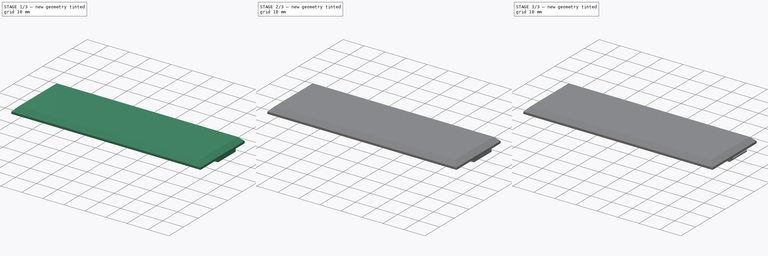
[diagram: build sequence overview — one tinted view per stage of 3, left to right]
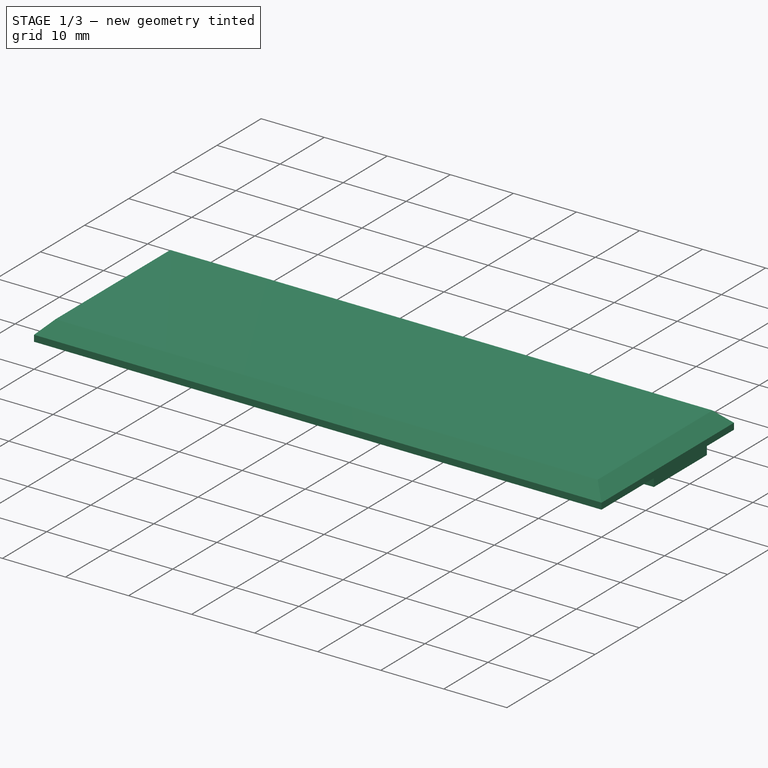
[diagram: stage 1 of 3 — iso view after this stage's code; geometry added in this stage tinted green]
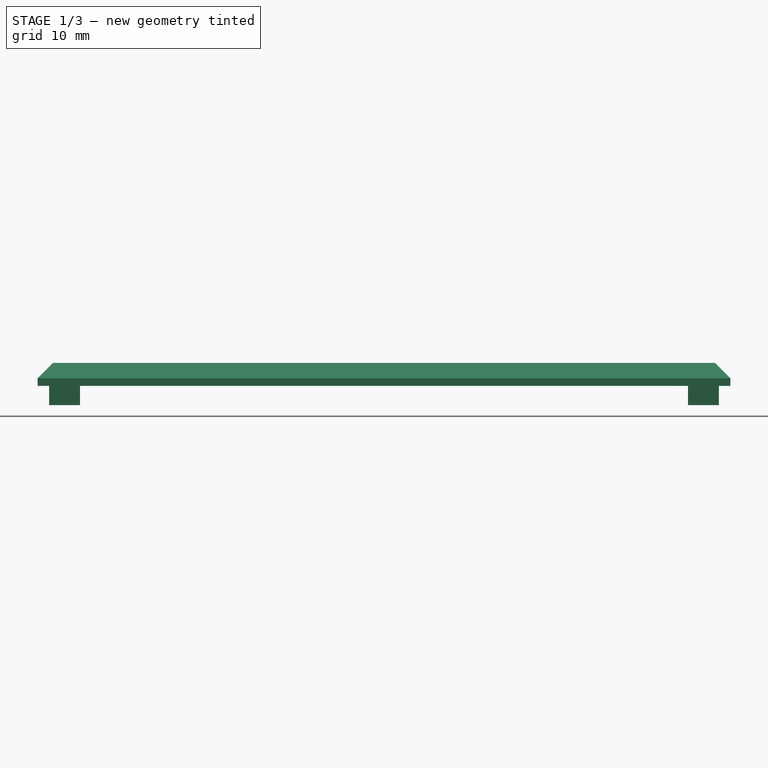
[diagram: stage 1 of 3 — front view after this stage's code; geometry added in this stage tinted green]
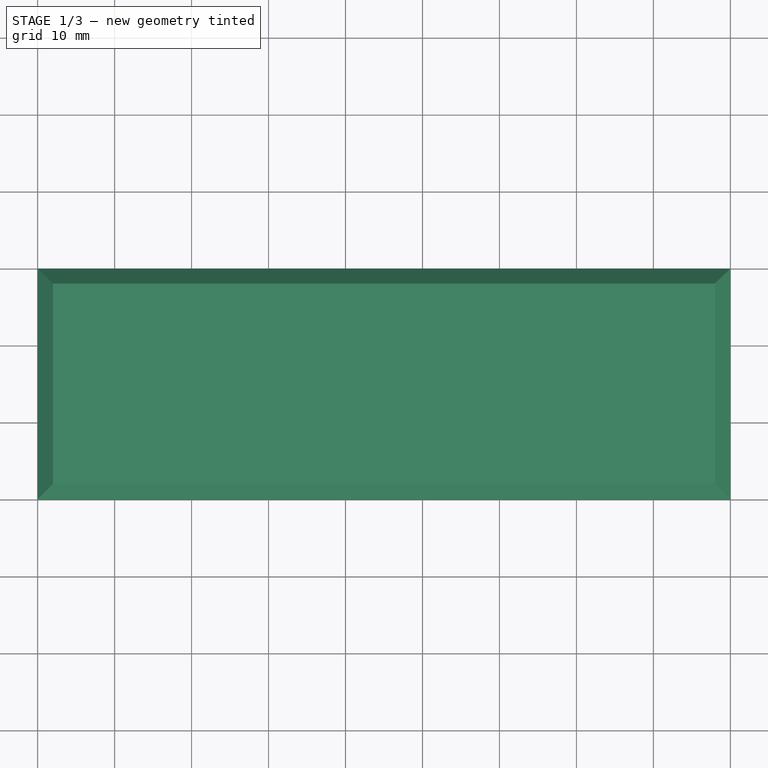
[diagram: stage 1 of 3 — top view after this stage's code; geometry added in this stage tinted green]
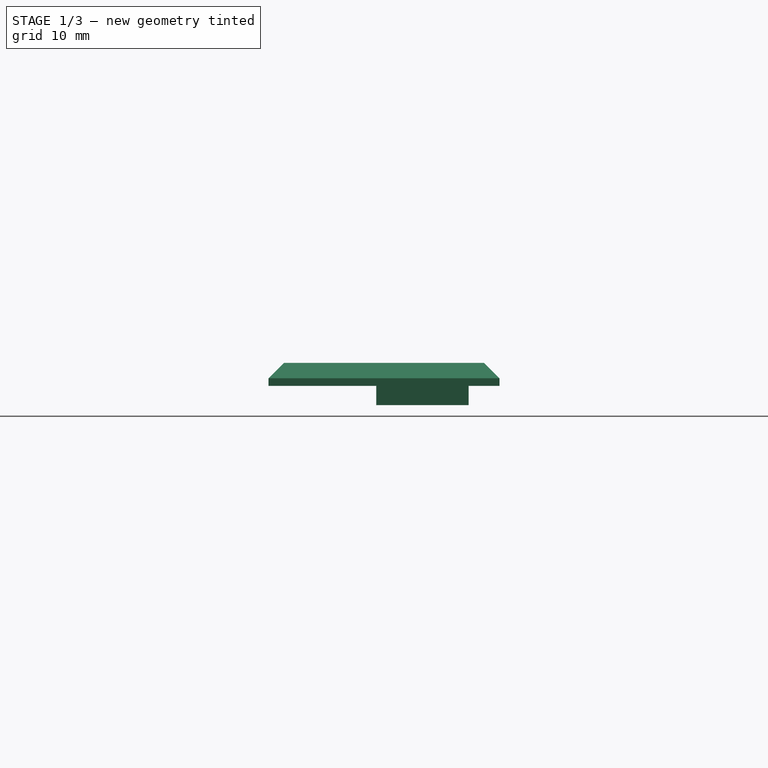
[diagram: stage 1 of 3 — right view after this stage's code; geometry added in this stage tinted green]
FCSTD DOCUMENT  (FreeCAD 0.18R16131 (Git))
Label: Simon splitter 6x lid
License: All rights reserved
LicenseURL: http://en.wikipedia.org/wiki/All_rights_reserved
objects: Sketcher::SketchObject×4, PartDesign::Chamfer×4, PartDesign::Pad×2, PartDesign::Pocket×2, PartDesign::Body×1
note: 17 computed .brp shape members not serialized (recipe doc carries the construction recipe); baked Part::Feature solids carry a one-line shape summary decoded from their .brp

FEATURE [Sketcher::SketchObject] Sketch
  MapMode = 5
  Support = -> [XY_Plane]
  sketch-geometry (4):
    g0: LineSegment StartX=0 StartY=1e-16 StartZ=0 EndX=90 EndY=1e-16 EndZ=0
    g1: LineSegment StartX=90 StartY=1e-16 StartZ=0 EndX=90 EndY=30 EndZ=0
    g2: LineSegment StartX=90 StartY=30 StartZ=0 EndX=0 EndY=30 EndZ=0
    g3: LineSegment StartX=0 StartY=30 StartZ=0 EndX=0 EndY=0 EndZ=0
  constraints (11):
    c: Coincident(g0,g1)
    c: Coincident(g1,g2)
    c: Coincident(g2,g3)
    c: Coincident(g3,g0)
    c: Horizontal(g0)
    c: Horizontal(g2)
    c: Vertical(g1)
    c: Vertical(g3)
    c: Distance(g2) = 90
    c: Distance(g3) = 30
    c: Coincident(g0,g-1)
FEATURE [PartDesign::Pad] Pad
  Length = 3
  Length2 = 100
  Profile = -> Sketch
  Type = 0
FEATURE [PartDesign::Chamfer] Chamfer
  Base = -> Pad [Face6]
  BaseFeature = -> Pad
  Size = 2
FEATURE [Sketcher::SketchObject] Sketch001
  MapMode = 5
  Placement = pos=(0,0,0) rot=(1,0,0;3.14159rad)
  Support = -> [Chamfer]
  sketch-geometry (8):
    g0: LineSegment StartX=88.5 StartY=-14 StartZ=0 EndX=84.5 EndY=-14 EndZ=0
    g1: LineSegment StartX=84.5 StartY=-14 StartZ=0 EndX=84.5 EndY=-26 EndZ=0
    g2: LineSegment StartX=84.5 StartY=-26 StartZ=0 EndX=88.5 EndY=-26 EndZ=0
    g3: LineSegment StartX=88.5 StartY=-26 StartZ=0 EndX=88.5 EndY=-14 EndZ=0
    g4: LineSegment StartX=5.5 StartY=-14 StartZ=0 EndX=1.5 EndY=-14 EndZ=0
    g5: LineSegment StartX=1.5 StartY=-14 StartZ=0 EndX=1.5 EndY=-26 EndZ=0
    g6: LineSegment StartX=1.5 StartY=-26 StartZ=0 EndX=5.5 EndY=-26 EndZ=0
    g7: LineSegment StartX=5.5 StartY=-26 StartZ=0 EndX=5.5 EndY=-14 EndZ=0
  constraints (24):
    c: Coincident(g0,g1)
    c: Coincident(g1,g2)
    c: Coincident(g2,g3)
    c: Coincident(g3,g0)
    c: Horizontal(g0)
    c: Horizontal(g2)
    c: Vertical(g1)
    c: Vertical(g3)
    c: Coincident(g4,g5)
    c: Coincident(g5,g6)
    c: Coincident(g6,g7)
    c: Coincident(g7,g4)
    c: Horizontal(g4)
    c: Horizontal(g6)
    c: Vertical(g5)
    c: Vertical(g7)
    c: Distance(g5) = 12
    c: Distance(g4) = 4
    c: DistanceX(g-2,g4) = 1.5
    c: Equal(g7,g1)
    c: Equal(g0,g4)
    c: DistanceX(g-2,g2) = 88.5
    c: DistanceY(g-1,g5) = -26
    c: DistanceY(g-1,g2) = -26
FEATURE [PartDesign::Pad] Pad001
  BaseFeature = -> Chamfer
  Length = 2.5
  Length2 = 100
  Profile = -> Sketch001
  Type = 0
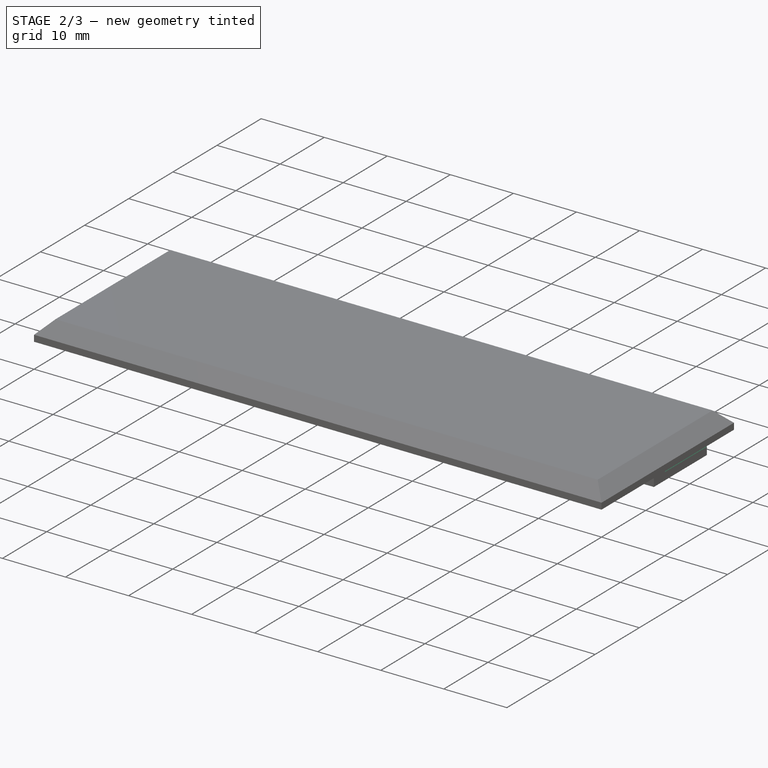
[diagram: stage 2 of 3 — iso view after this stage's code; geometry added in this stage tinted green]
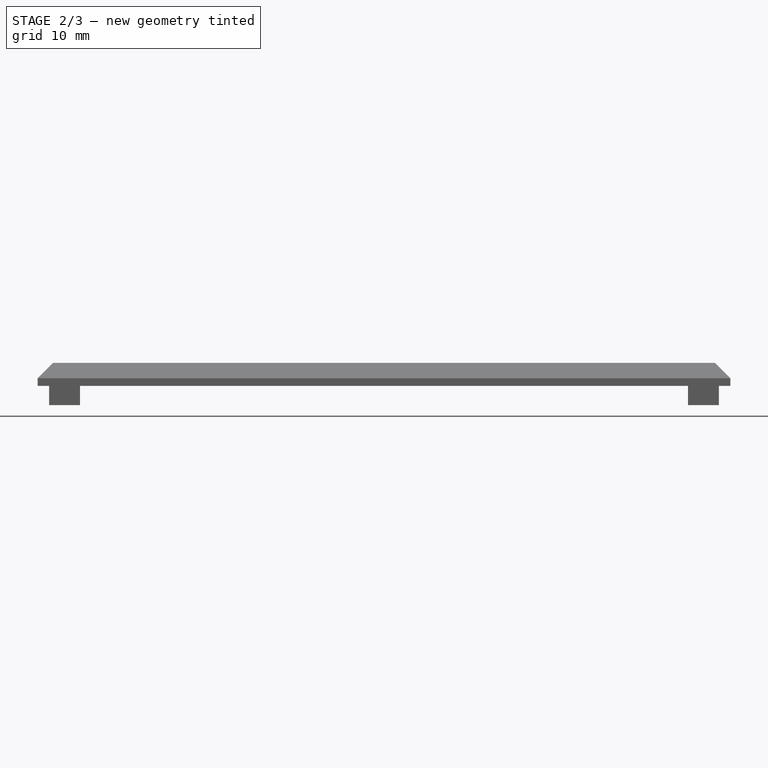
[diagram: stage 2 of 3 — front view after this stage's code; geometry added in this stage tinted green]
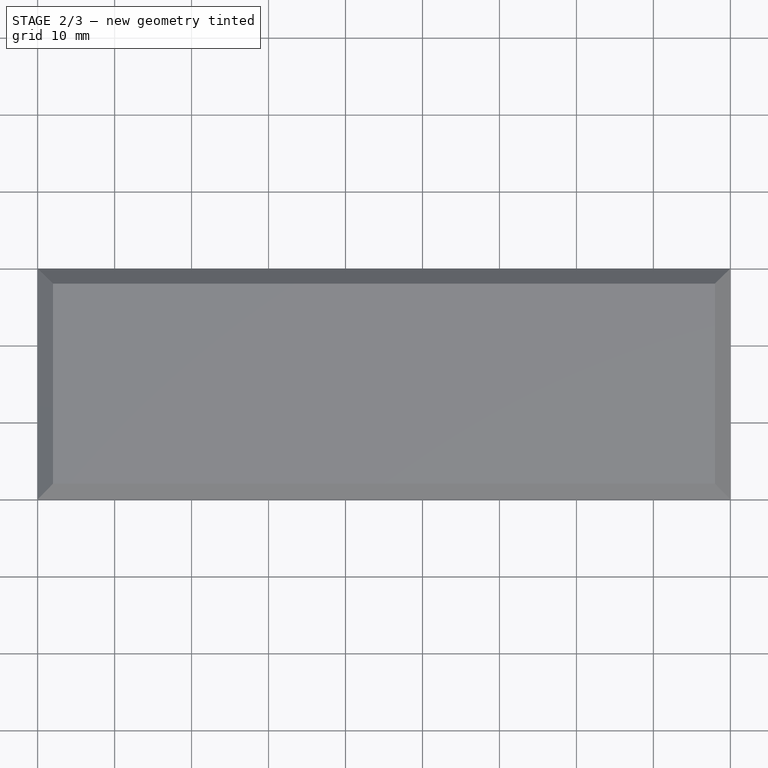
[diagram: stage 2 of 3 — top view after this stage's code; geometry added in this stage tinted green]
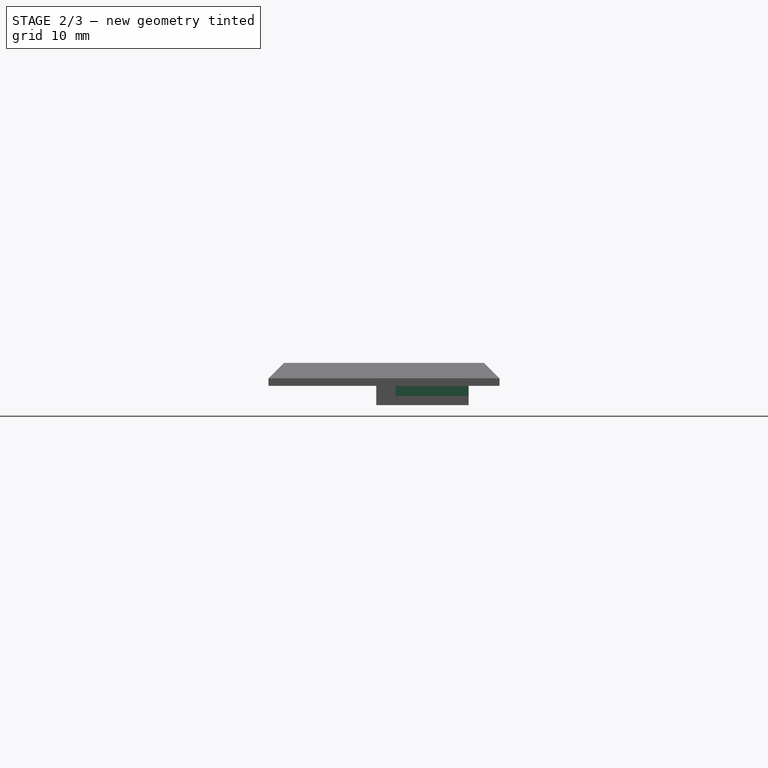
[diagram: stage 2 of 3 — right view after this stage's code; geometry added in this stage tinted green]
FEATURE [Sketcher::SketchObject] Sketch002
  MapMode = 5
  Placement = pos=(88.5,0,0) rot=(0.57735,0.57735,0.57735;2.0944rad)
  Support = -> [Pad001]
  sketch-geometry (4):
    g0: LineSegment StartX=26 StartY=0 StartZ=0 EndX=16.5 EndY=0 EndZ=0
    g1: LineSegment StartX=16.5 StartY=0 StartZ=0 EndX=16.5 EndY=-1.3 EndZ=0
    g2: LineSegment StartX=16.5 StartY=-1.3 StartZ=0 EndX=26 EndY=-1.3 EndZ=0
    g3: LineSegment StartX=26 StartY=-1.3 StartZ=0 EndX=26 EndY=0 EndZ=0
  constraints (12):
    c: Coincident(g0,g1)
    c: Coincident(g1,g2)
    c: Coincident(g2,g3)
    c: Coincident(g3,g0)
    c: Horizontal(g0)
    c: Horizontal(g2)
    c: Vertical(g1)
    c: Vertical(g3)
    c: PointOnObject(g0,g-1)
    c: Distance(g3) = 1.3
    c: Distance(g2) = 9.5
    c: DistanceX(g-2,g2) = 26
FEATURE [PartDesign::Pocket] Pocket
  BaseFeature = -> Pad001
  Length = 2
  Length2 = 100
  Profile = -> Sketch002
  Type = 0
FEATURE [Sketcher::SketchObject] Sketch003
  MapMode = 5
  Placement = pos=(1.5,0,0) rot=(0.57735,-0.57735,-0.57735;2.0944rad)
  Support = -> [Pocket]
  sketch-geometry (4):
    g0: LineSegment StartX=-26 StartY=-1.3 StartZ=0 EndX=-16.5 EndY=-1.3 EndZ=0
    g1: LineSegment StartX=-16.5 StartY=-1.3 StartZ=0 EndX=-16.5 EndY=0 EndZ=0
    g2: LineSegment StartX=-16.5 StartY=0 StartZ=0 EndX=-26 EndY=0 EndZ=0
    g3: LineSegment StartX=-26 StartY=0 StartZ=0 EndX=-26 EndY=-1.3 EndZ=0
  constraints (12):
    c: Coincident(g0,g1)
    c: Coincident(g1,g2)
    c: Coincident(g2,g3)
    c: Coincident(g3,g0)
    c: Horizontal(g0)
    c: Horizontal(g2)
    c: Vertical(g1)
    c: Vertical(g3)
    c: PointOnObject(g2,g-1)
    c: Distance(g3) = 1.3
    c: DistanceX(g-2,g0) = -26
    c: Distance(g0) = 9.5
FEATURE [PartDesign::Pocket] Pocket001
  BaseFeature = -> Pocket
  Length = 2
  Length2 = 100
  Profile = -> Sketch003
  Type = 0
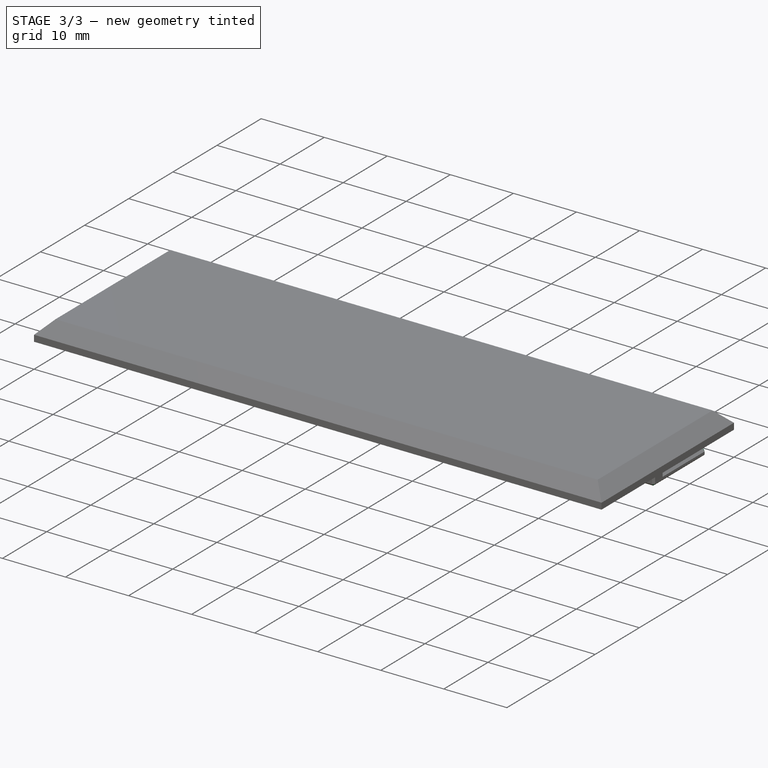
[diagram: stage 3 of 3 — iso view after this stage's code; geometry added in this stage tinted green]
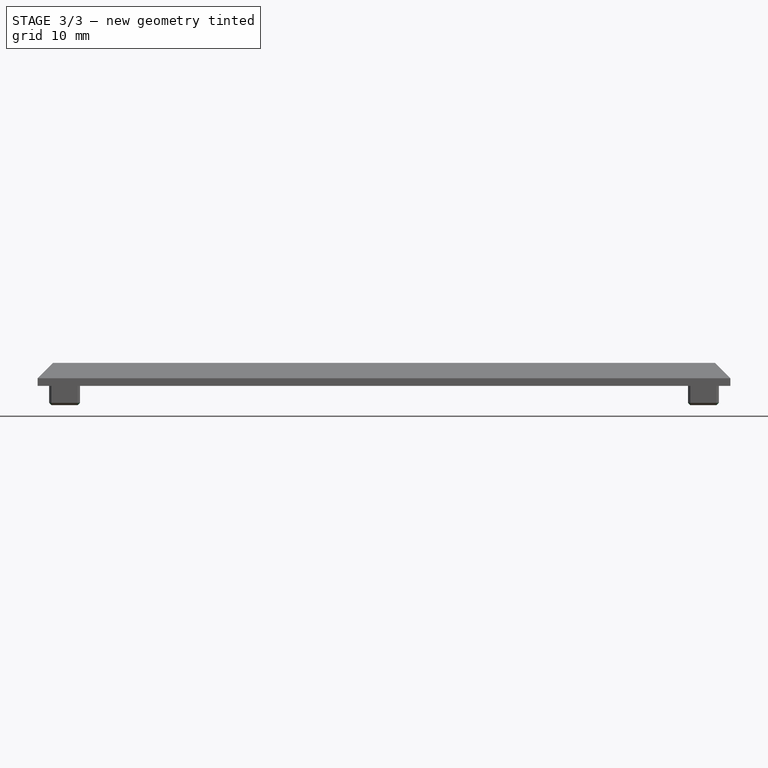
[diagram: stage 3 of 3 — front view after this stage's code; geometry added in this stage tinted green]
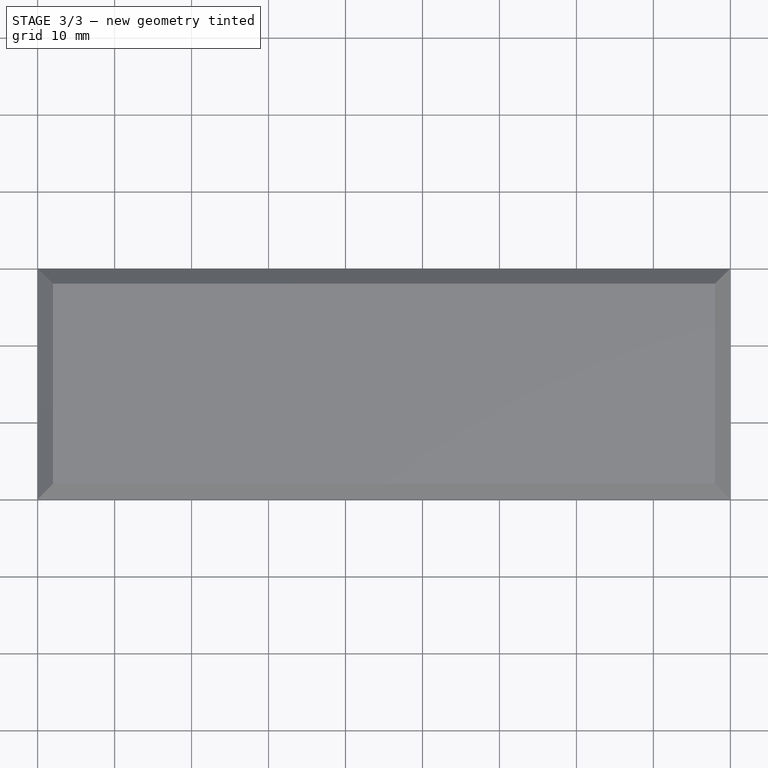
[diagram: stage 3 of 3 — top view after this stage's code; geometry added in this stage tinted green]
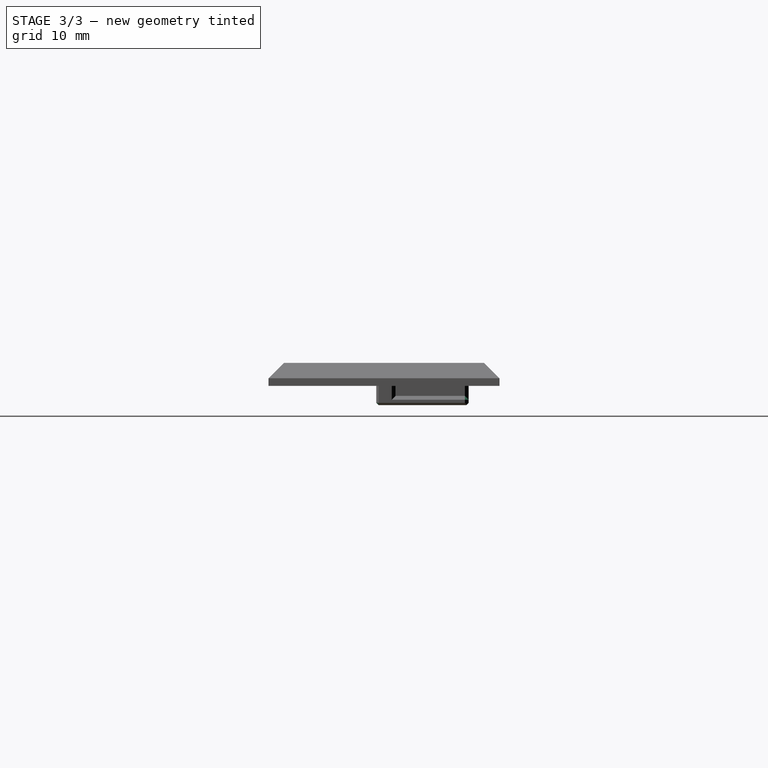
[diagram: stage 3 of 3 — right view after this stage's code; geometry added in this stage tinted green]
FEATURE [PartDesign::Chamfer] Chamfer001
  Base = -> Pocket001 [Edge38,Edge39,Edge43,Edge42,Edge54,Edge55,Edge49,Edge50,Edge53,Edge41]
  BaseFeature = -> Pocket001
  Size = 0.5
FEATURE [PartDesign::Chamfer] Chamfer002
  Base = -> Chamfer001 [Edge31,Edge22,Edge30,Edge33,Edge32,Edge36,Edge58,Edge57,Edge49,Edge56,Edge55,Edge47]
  BaseFeature = -> Chamfer001
  Size = 0.3
FEATURE [PartDesign::Chamfer] Chamfer003
  Base = -> Chamfer002 [Edge29,Edge78]
  BaseFeature = -> Chamfer002
  Size = 0.3
FEATURE [PartDesign::Body] Body
  Group = -> [Sketch,Pad,Chamfer,Sketch001,Pad001,Sketch002,Pocket,Sketch003,Pocket001,Chamfer001,Chamfer002,Chamfer003]
  Origin = -> Origin
  Tip = -> Chamfer003
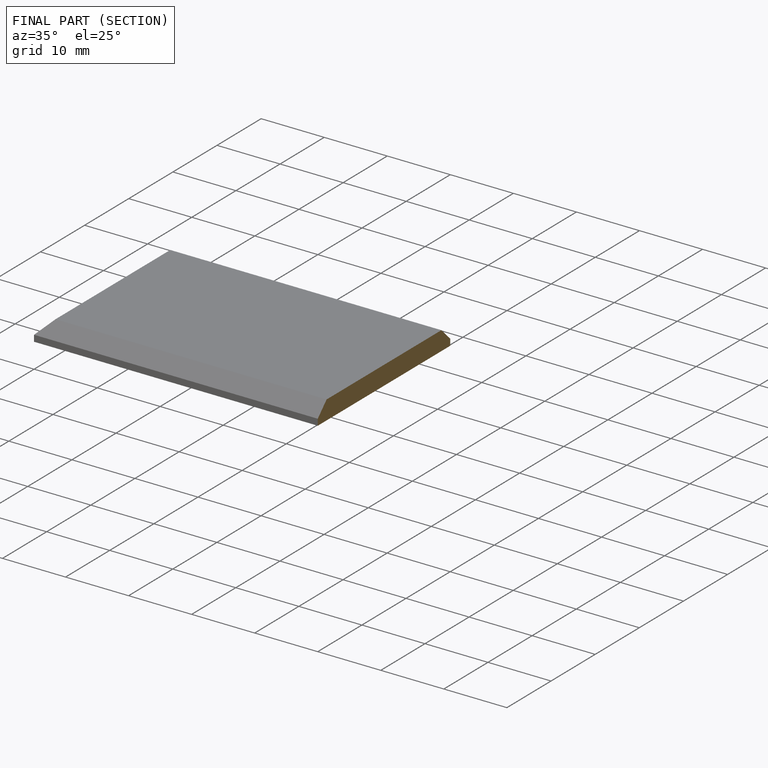
[diagram: finished part — half-section view (interior)]
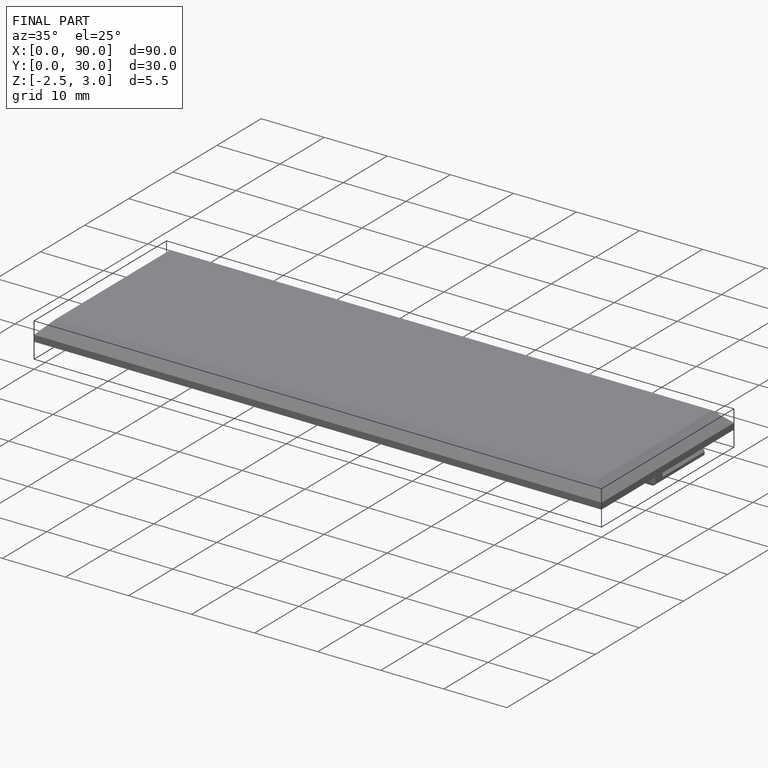
[diagram: finished part — iso view with bounding-box wireframe]
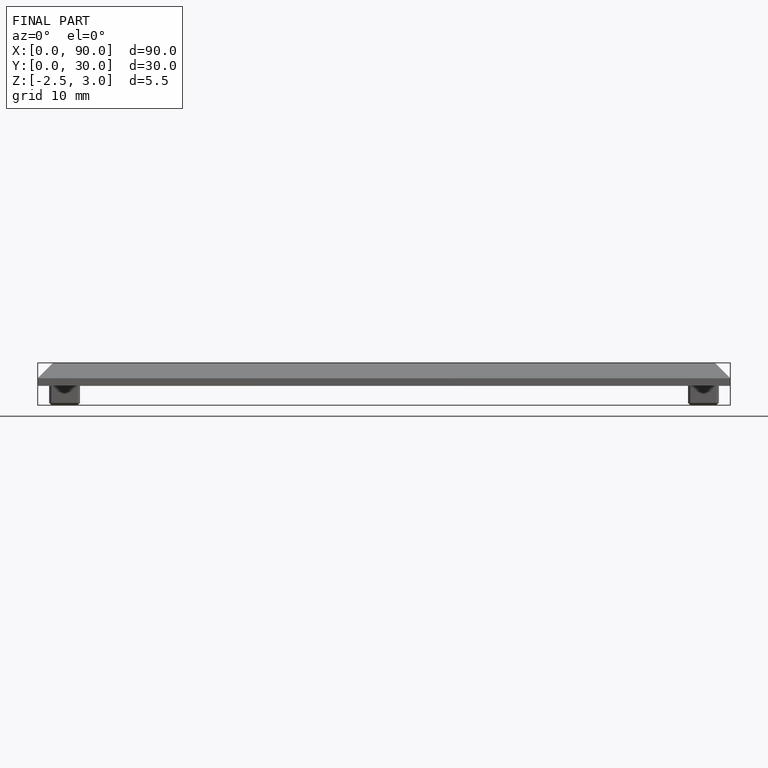
[diagram: finished part — front view with bounding-box wireframe]
